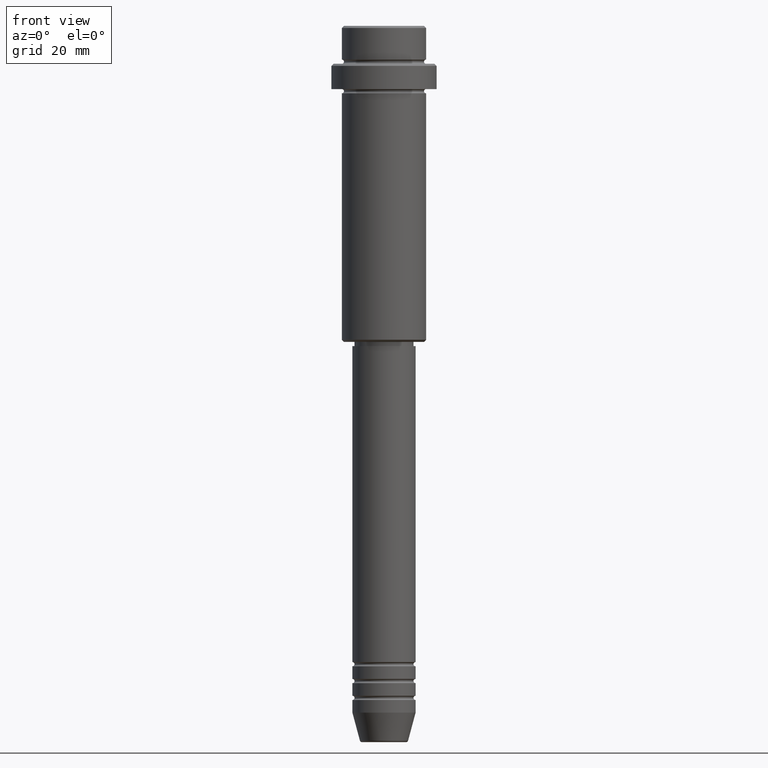
[diagram: clean part render]
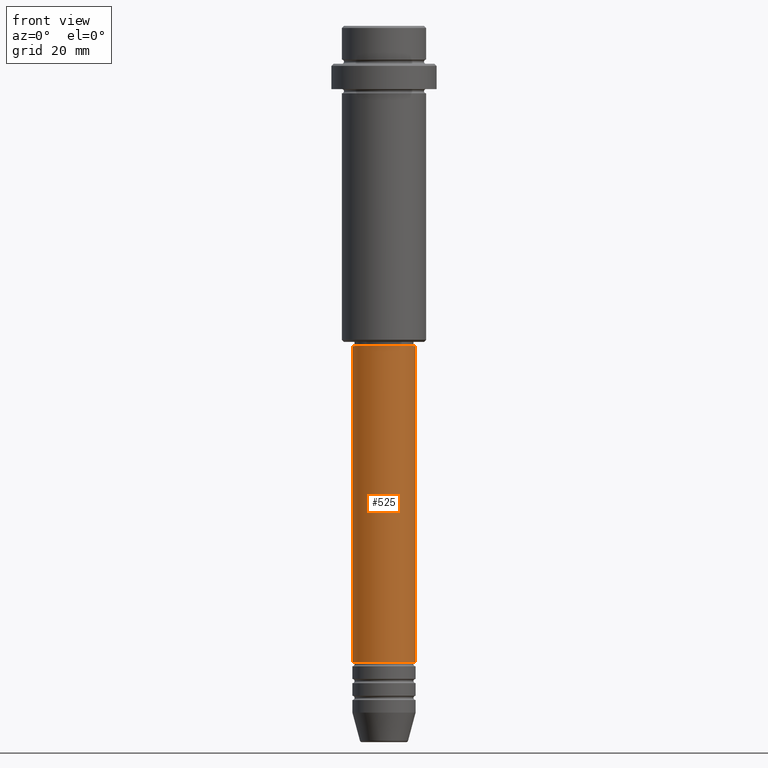
[diagram: same view with one face highlighted and labeled with its STEP entity id]
A machine part, front view. The second image highlights one B-rep face of the part: STEP entity #525.
In plain terms, the highlighted cylindrical surface (edge-blend (fillet) strip) has radius 7.5 mm, axis along (-0, -0, 1).
Its self-contained STEP definition (entity closure, byte-faithful):
#4 = VERTEX_POINT ( 'NONE', #690 ) ;
#7 = EDGE_CURVE ( 'NONE', #180, #355, #803, .T. ) ;
#38 = DIRECTION ( 'NONE',  ( -0.000000000000000000, -0.000000000000000000, 1.000000000000000000 ) ) ;
#42 = DIRECTION ( 'NONE',  ( -0.000000000000000000, -0.000000000000000000, 1.000000000000000000 ) ) ;
#53 = VECTOR ( 'NONE', #458, 1000.000000000000000 ) ;
#155 = EDGE_CURVE ( 'NONE', #4, #355, #564, .T. ) ;
#156 = DIRECTION ( 'NONE',  ( -0.000000000000000000, -0.000000000000000000, 1.000000000000000000 ) ) ;
#180 = VERTEX_POINT ( 'NONE', #874 ) ;
#226 = LINE ( 'NONE', #260, #53 ) ;
#248 = AXIS2_PLACEMENT_3D ( 'NONE', #1140, #156, #1034 ) ;
#258 = CIRCLE ( 'NONE', #980, 7.500000000000000000 ) ;
#260 = CARTESIAN_POINT ( 'NONE',  ( -7.500000000000000000, 9.184850993605147944E-16, 0.000000000000000000 ) ) ;
#284 = DIRECTION ( 'NONE',  ( -0.000000000000000000, -0.000000000000000000, 1.000000000000000000 ) ) ;
#355 = VERTEX_POINT ( 'NONE', #1413 ) ;
#458 = DIRECTION ( 'NONE',  ( -0.000000000000000000, -0.000000000000000000, 1.000000000000000000 ) ) ;
#475 = VERTEX_POINT ( 'NONE', #768 ) ;
#525 = ADVANCED_FACE ( 'NONE', ( #794 ), #937, .T. ) ;
#564 = CIRCLE ( 'NONE', #248, 7.500000000000000000 ) ;
#583 = CARTESIAN_POINT ( 'NONE',  ( 0.000000000000000000, 0.000000000000000000, 0.000000000000000000 ) ) ;
#604 = VECTOR ( 'NONE', #38, 1000.000000000000000 ) ;
#607 = ORIENTED_EDGE ( 'NONE', *, *, #1229, .T. ) ;
#690 = CARTESIAN_POINT ( 'NONE',  ( -7.500000000000000000, 9.184850993605147944E-16, -76.00000000000001421 ) ) ;
#724 = AXIS2_PLACEMENT_3D ( 'NONE', #583, #42, #1027 ) ;
#768 = CARTESIAN_POINT ( 'NONE',  ( -7.500000000000000000, 9.184850993605147944E-16, -150.9999999999999147 ) ) ;
#794 = FACE_OUTER_BOUND ( 'NONE', #1187, .T. ) ;
#803 = LINE ( 'NONE', #1340, #604 ) ;
#874 = CARTESIAN_POINT ( 'NONE',  ( 7.500000000000000000, 0.000000000000000000, -150.9999999999999147 ) ) ;
#937 = CYLINDRICAL_SURFACE ( 'NONE', #724, 7.500000000000000000 ) ;
#980 = AXIS2_PLACEMENT_3D ( 'NONE', #1167, #284, #1393 ) ;
#1027 = DIRECTION ( 'NONE',  ( 1.000000000000000000, 0.000000000000000000, 0.000000000000000000 ) ) ;
#1034 = DIRECTION ( 'NONE',  ( 1.000000000000000000, 0.000000000000000000, 0.000000000000000000 ) ) ;
#1140 = CARTESIAN_POINT ( 'NONE',  ( 0.000000000000000000, 0.000000000000000000, -76.00000000000001421 ) ) ;
#1167 = CARTESIAN_POINT ( 'NONE',  ( 0.000000000000000000, 0.000000000000000000, -150.9999999999999147 ) ) ;
#1187 = EDGE_LOOP ( 'NONE', ( #1235, #607, #1400, #1414 ) ) ;
#1229 = EDGE_CURVE ( 'NONE', #475, #180, #258, .T. ) ;
#1235 = ORIENTED_EDGE ( 'NONE', *, *, #1397, .F. ) ;
#1340 = CARTESIAN_POINT ( 'NONE',  ( 7.500000000000000000, 0.000000000000000000, 0.000000000000000000 ) ) ;
#1393 = DIRECTION ( 'NONE',  ( 1.000000000000000000, 0.000000000000000000, 0.000000000000000000 ) ) ;
#1397 = EDGE_CURVE ( 'NONE', #475, #4, #226, .T. ) ;
#1400 = ORIENTED_EDGE ( 'NONE', *, *, #7, .T. ) ;
#1413 = CARTESIAN_POINT ( 'NONE',  ( 7.500000000000000000, 0.000000000000000000, -76.00000000000001421 ) ) ;
#1414 = ORIENTED_EDGE ( 'NONE', *, *, #155, .F. ) ;